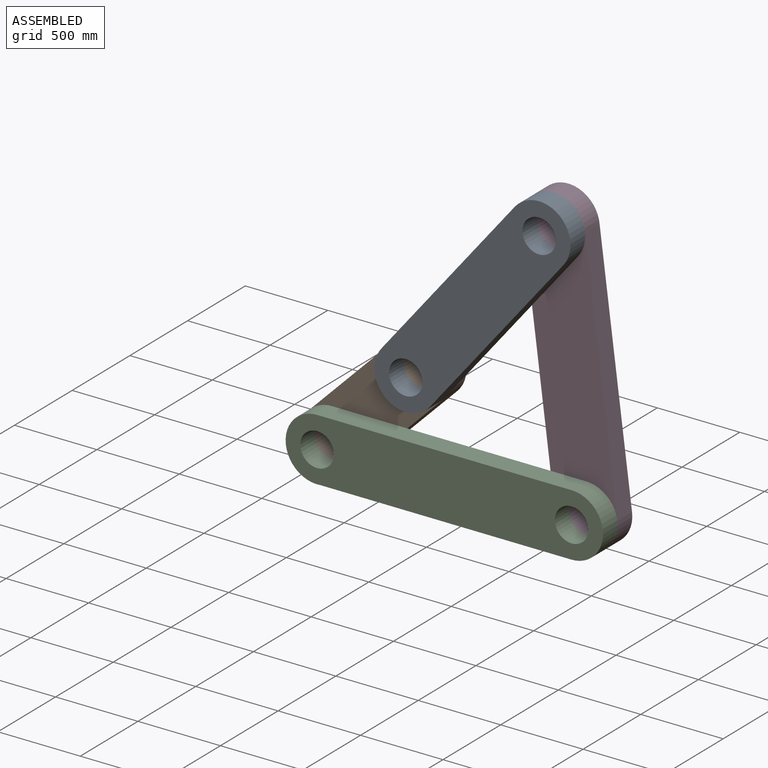
[diagram: assembled view]
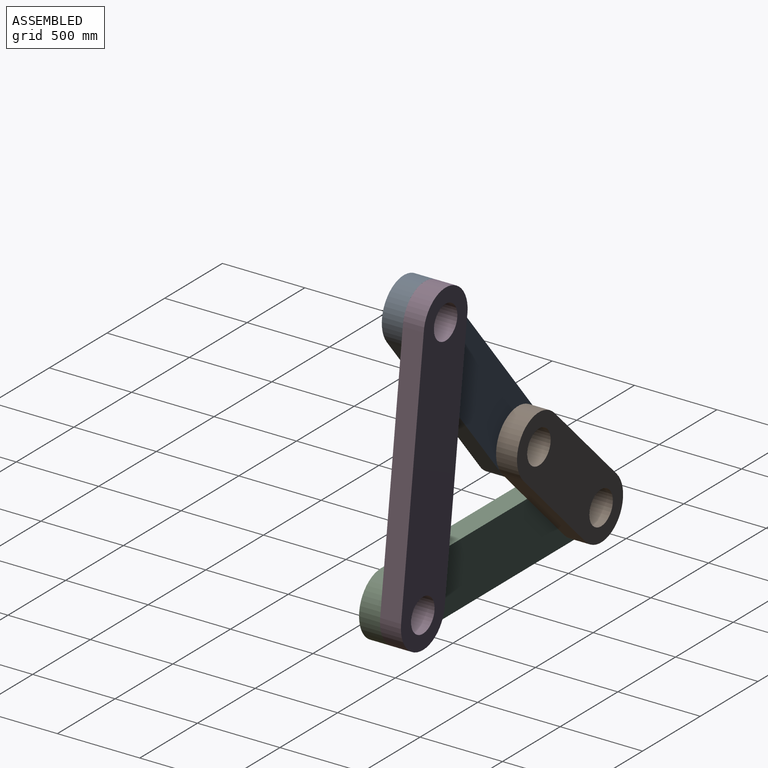
[diagram: assembled view, second angle]
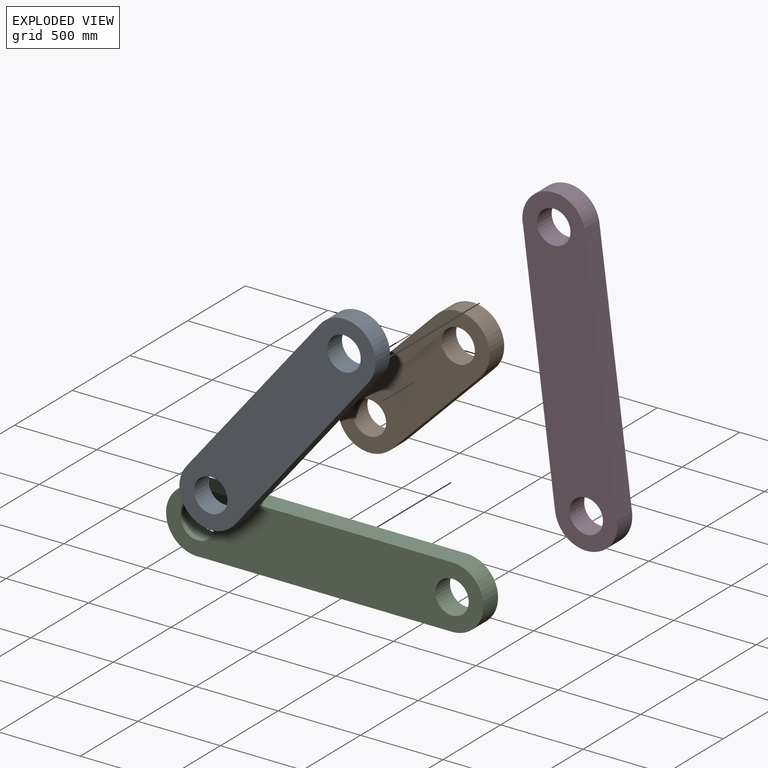
[diagram: exploded view]
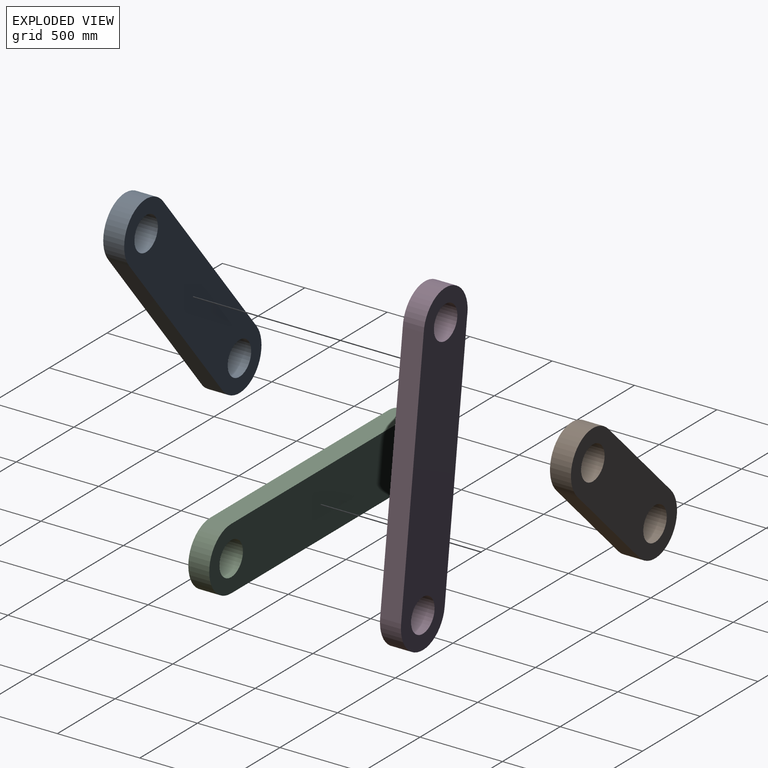
[diagram: exploded view, second angle]
ASSEMBLY  parts=4 mates=4
PART A: 8 faces, bbox 1661.4x127x381 mm
  f0: plane 1270x127mm, normal (0,0,-1), area 161290mm2, adj f1,f5,f6,f7
  f1: cylinder r=190.5mm len=381mm, axis (0,-1,0), area 76011.6mm2, adj f0,f2,f6,f7
  f2: plane 1278.34x127mm, normal (0,0,1), area 162348.9mm2, adj f1,f5,f6,f7
  f3: cylinder r=101.6mm len=203.2mm, axis (0,-1,0), area 81073.2mm2, adj f6,f7
  f4: cylinder r=101.6mm len=203.2mm, axis (0,-1,0), area 81073.2mm2, adj f6,f7
  f5: cylinder r=190.5mm len=381mm, axis (0,-1,0), area 77572.7mm2, adj f0,f2,f6,f7
  f6: plane 1661.36x381mm, normal (0,-1,0), area 536780.9mm2, adj f0,f1,f2,f3,f4,f5
  f7: plane 1661.36x381mm, normal (0,1,0), area 536780.9mm2, adj f0,f1,f2,f3,f4,f5
PART B: 8 faces, bbox 1143x127x381 mm
  f0: plane 762x127mm, normal (0,0,-1), area 96774mm2, adj f1,f5,f6,f7
  f1: cylinder r=190.5mm len=381mm, axis (0,-1,0), area 76006.1mm2, adj f0,f2,f6,f7
  f2: plane 762x127mm, normal (0,0,1), area 96774mm2, adj f1,f5,f6,f7
  f3: cylinder r=101.6mm len=203.2mm, axis (0,-1,0), area 81073.2mm2, adj f6,f7
  f4: cylinder r=101.6mm len=203.2mm, axis (0,-1,0), area 81073.2mm2, adj f6,f7
  f5: cylinder r=190.5mm len=381mm, axis (0,-1,0), area 76006.1mm2, adj f0,f2,f6,f7
  f6: plane 1143x381mm, normal (0,-1,0), area 339472.6mm2, adj f0,f1,f2,f3,f4,f5
  f7: plane 1143x381mm, normal (0,1,0), area 339472.6mm2, adj f0,f1,f2,f3,f4,f5
PART C: 8 faces, bbox 1925.4x127x381 mm
  f0: plane 1535.75x127mm, normal (0,0,1), area 195040.8mm2, adj f1,f5,f6,f7
  f1: cylinder r=190.5mm len=381mm, axis (0,-1,0), area 79689.2mm2, adj f0,f2,f6,f7
  f2: plane 1524x127mm, normal (0,0,-1), area 193548mm2, adj f1,f5,f6,f7
  f3: cylinder r=101.6mm len=203.2mm, axis (0,-1,0), area 81073.2mm2, adj f6,f7
  f4: cylinder r=101.6mm len=203.2mm, axis (0,-1,0), area 81073.2mm2, adj f6,f7
  f5: cylinder r=190.5mm len=381mm, axis (0,-1,0), area 76026.4mm2, adj f0,f2,f6,f7
  f6: plane 1925.44x381mm, normal (0,-1,0), area 636595.3mm2, adj f0,f1,f2,f3,f4,f5
  f7: plane 1925.44x381mm, normal (0,1,0), area 636595.3mm2, adj f0,f1,f2,f3,f4,f5
PART D: same geometry as C
PLACE A rot(axis=(0,-1,0),50.8deg) t=(-1154.72,-651.87,341.73)mm
PLACE B rot(axis=(0,-1,0),45deg) t=(-1777.54,-524.87,-423.44)mm
PLACE C t=(-1254.51,-651.87,-965.66)mm fixed
PLACE D rot(axis=(0,1,0),82.7deg) t=(-835.93,-524.87,-489.71)mm
MATE revolute D.f3 <-> C.f3  axis (0,-1,0) through (-774.63,-651.87,-965.66)mm
MATE revolute D.f1 <-> A.f1  axis (0,-1,0) through (-971.9,-651.87,566.13)mm
MATE revolute B.f4 <-> C.f1  axis (0,-1,0) through (-2319.07,-651.87,-965.66)mm
MATE revolute B.f1 <-> A.f4  axis (0,-1,0) through (-1780.6,-651.87,-426.5)mm
